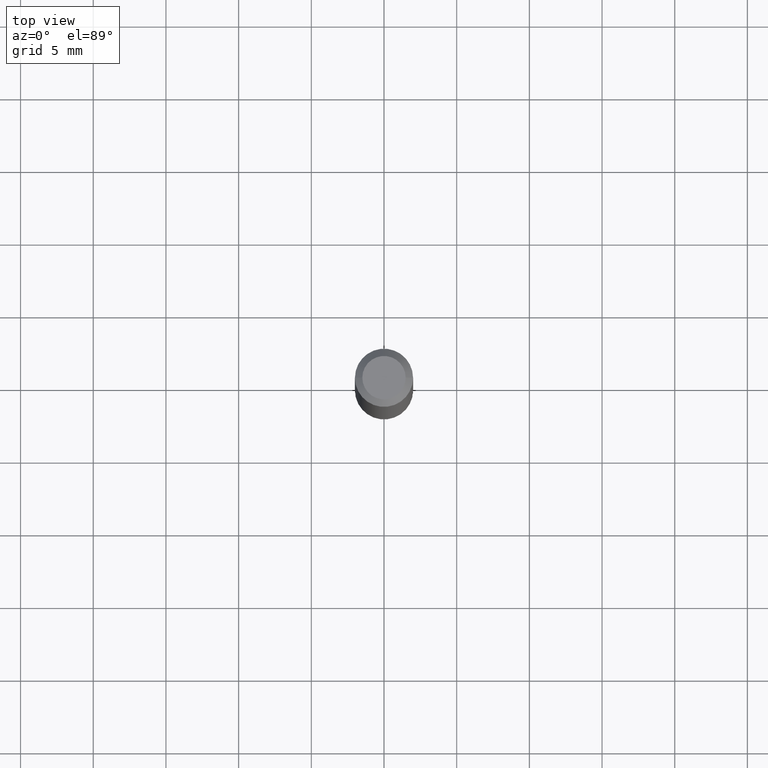
[diagram: clean part render]
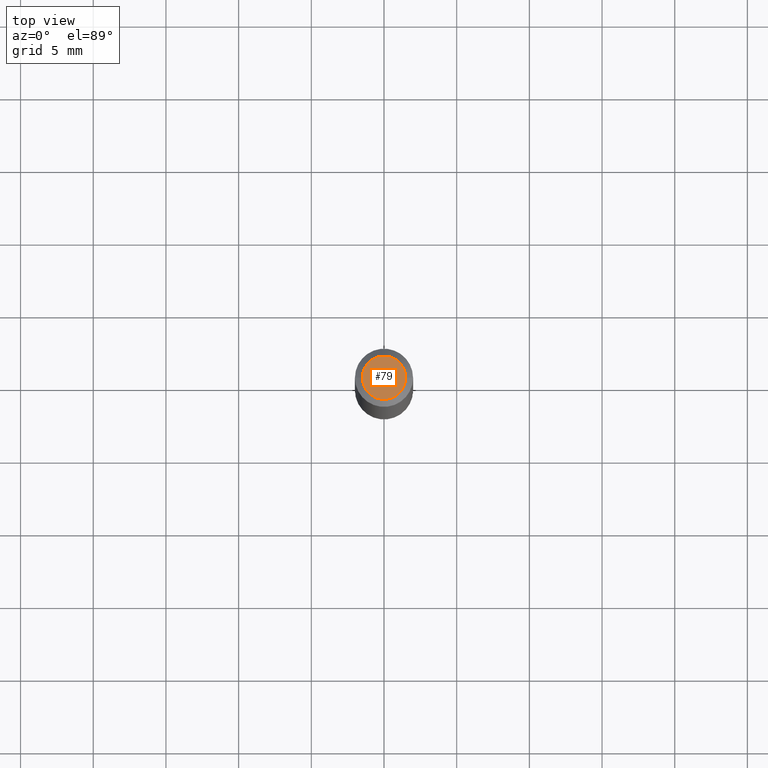
[diagram: same view with one face highlighted and labeled with its STEP entity id]
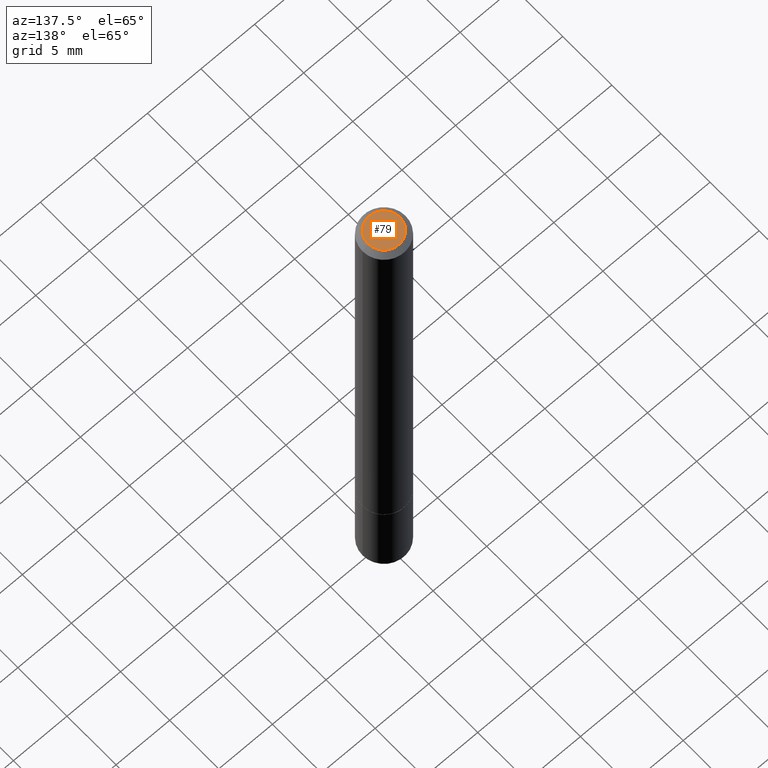
[diagram: same view with one face highlighted and labeled with its STEP entity id]
A machine part, top view. The second image highlights one B-rep face of the part: STEP entity #79.
A second angle (auxiliary view) of the same face is appended — the face is thin or edge-on in the first view.
In plain terms, the highlighted planar face has unit normal (0, -0, -1).
Its self-contained STEP definition (entity closure, byte-faithful):
#1 = DIRECTION ( 'NONE',  ( 1.000000000000000000, -6.982962677686266711E-15, 4.876176775795935793E-29 ) ) ;
#12 = ORIENTED_EDGE ( 'NONE', *, *, #68, .T. ) ;
#35 = AXIS2_PLACEMENT_3D ( 'NONE', #130, #343, #1 ) ;
#41 = DIRECTION ( 'NONE',  ( 1.000000000000000000, -6.982962677686266711E-15, 4.876176775795935793E-29 ) ) ;
#59 = DIRECTION ( 'NONE',  ( -2.445468806185136597E-29, 3.491481338843145583E-15, 1.000000000000000000 ) ) ;
#68 = EDGE_CURVE ( 'NONE', #194, #167, #155, .T. ) ;
#73 = EDGE_LOOP ( 'NONE', ( #12, #162 ) ) ;
#79 = ADVANCED_FACE ( 'NONE', ( #341 ), #291, .F. ) ;
#89 = CARTESIAN_POINT ( 'NONE',  ( 0.000000000000000000, 0.000000000000000000, 0.000000000000000000 ) ) ;
#92 = CIRCLE ( 'NONE', #325, 0.05874999999999985095 ) ;
#130 = CARTESIAN_POINT ( 'NONE',  ( 0.000000000000000000, 0.000000000000000000, 0.000000000000000000 ) ) ;
#155 = CIRCLE ( 'NONE', #35, 0.05874999999999985095 ) ;
#162 = ORIENTED_EDGE ( 'NONE', *, *, #270, .T. ) ;
#167 = VERTEX_POINT ( 'NONE', #347 ) ;
#194 = VERTEX_POINT ( 'NONE', #227 ) ;
#204 = DIRECTION ( 'NONE',  ( -1.000000000000000000, 6.982962677686265922E-15, -4.876176775795935793E-29 ) ) ;
#227 = CARTESIAN_POINT ( 'NONE',  ( -0.05874999999999985095, 4.451638707024981026E-16, -2.990994270918719090E-30 ) ) ;
#270 = EDGE_CURVE ( 'NONE', #167, #194, #92, .T. ) ;
#288 = DIRECTION ( 'NONE',  ( 2.438088387897960049E-29, -3.491481338843145188E-15, -1.000000000000000000 ) ) ;
#291 = PLANE ( 'NONE',  #344 ) ;
#325 = AXIS2_PLACEMENT_3D ( 'NONE', #89, #59, #41 ) ;
#341 = FACE_OUTER_BOUND ( 'NONE', #73, .T. ) ;
#342 = CARTESIAN_POINT ( 'NONE',  ( 4.102490573140670944E-16, 0.05874999999999985095, -2.051245286570342868E-16 ) ) ;
#343 = DIRECTION ( 'NONE',  ( -2.445468806185136597E-29, 3.491481338843145583E-15, 1.000000000000000000 ) ) ;
#344 = AXIS2_PLACEMENT_3D ( 'NONE', #342, #288, #204 ) ;
#347 = CARTESIAN_POINT ( 'NONE',  ( 0.05874999999999985095, -5.065740507352231227E-16, 3.205406768517976639E-30 ) ) ;